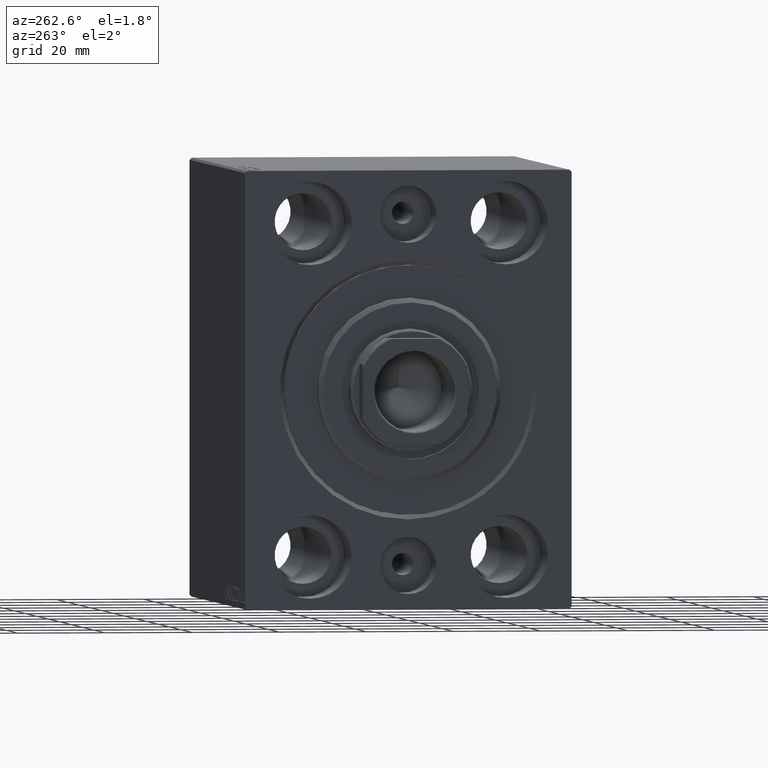
[diagram: clean part render]
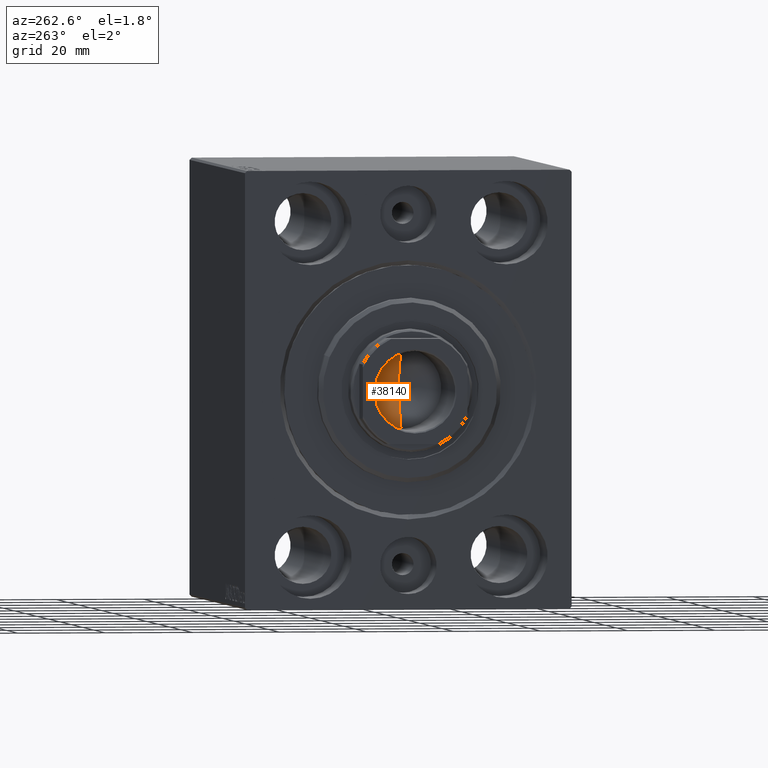
[diagram: same view with one face highlighted and labeled with its STEP entity id]
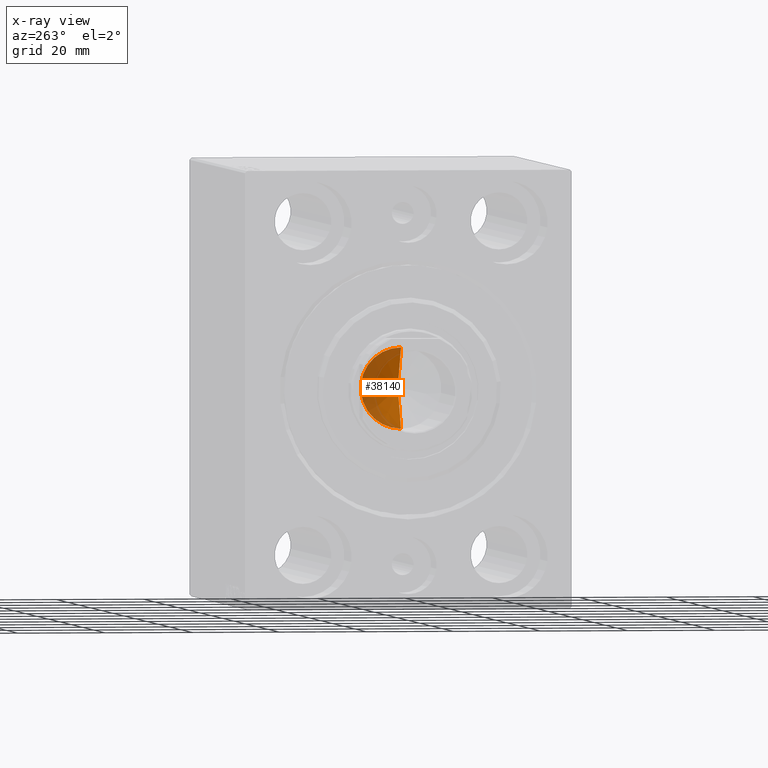
[diagram: x-ray of the same camera — body ghosted, the highlighted face saturated]
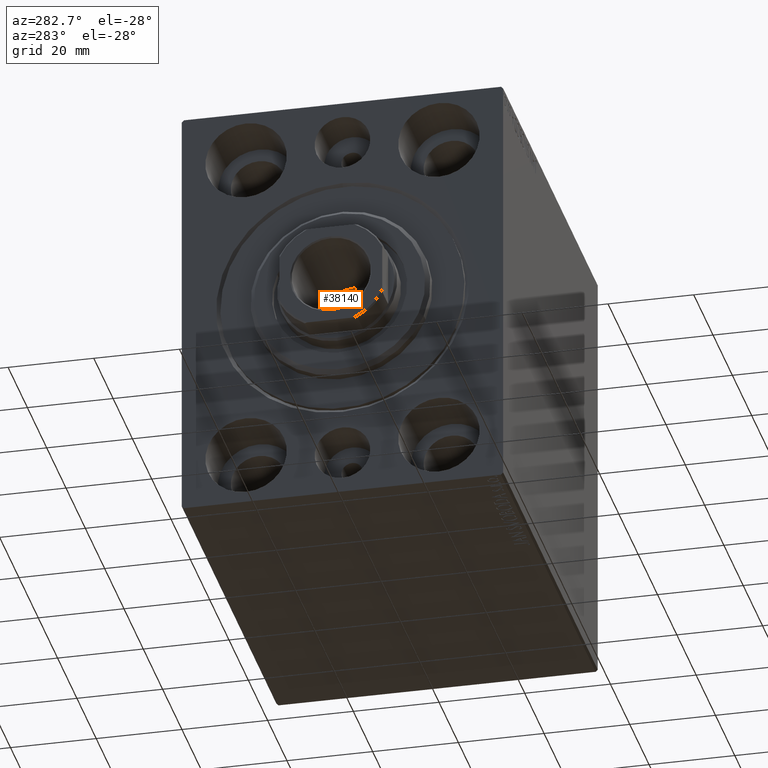
[diagram: same view with one face highlighted and labeled with its STEP entity id]
A machine part, auxiliary view. The second image highlights one B-rep face of the part: STEP entity #38140.
The next image is the same camera in x-ray: the body ghosted, the highlighted face saturated — about 46% of this face is hidden behind the body in this view.
A second angle (auxiliary view) of the same face is appended — the face is thin or edge-on in the first view.
In plain terms, the highlighted conical surface has half-angle 59 deg.
Its self-contained STEP definition (entity closure, byte-faithful):
#2763 = VERTEX_POINT ( 'NONE', #42252 ) ;
#2960 = DIRECTION ( 'NONE',  ( -0.000000000000000000, -0.000000000000000000, 1.000000000000000000 ) ) ;
#3900 = CARTESIAN_POINT ( 'NONE',  ( 9.249999999999994671, 0.000000000000000000, 71.00000000000001421 ) ) ;
#5080 = CARTESIAN_POINT ( 'NONE',  ( -9.249999999999994671, 1.132798289211300909E-15, 71.00000000000001421 ) ) ;
#5991 = ORIENTED_EDGE ( 'NONE', *, *, #30220, .F. ) ;
#7257 = LINE ( 'NONE', #27015, #27198 ) ;
#8311 = VECTOR ( 'NONE', #22465, 1000.000000000000000 ) ;
#9753 = DIRECTION ( 'NONE',  ( -0.000000000000000000, -0.000000000000000000, 1.000000000000000000 ) ) ;
#13919 = DIRECTION ( 'NONE',  ( 0.8571673007021113344, 0.000000000000000000, 0.5150380749100558209 ) ) ;
#14937 = ORIENTED_EDGE ( 'NONE', *, *, #15460, .T. ) ;
#15460 = EDGE_CURVE ( 'NONE', #2763, #37455, #7257, .T. ) ;
#15592 = CONICAL_SURFACE ( 'NONE', #23380, 9.249999999999994671, 1.029744258676652535 ) ;
#16223 = ORIENTED_EDGE ( 'NONE', *, *, #39587, .T. ) ;
#19336 = CARTESIAN_POINT ( 'NONE',  ( -9.249999999999994671, 1.132798289211300909E-15, 71.00000000000001421 ) ) ;
#19778 = CARTESIAN_POINT ( 'NONE',  ( 0.000000000000000000, 0.000000000000000000, 71.00000000000001421 ) ) ;
#20187 = CARTESIAN_POINT ( 'NONE',  ( 0.000000000000000000, 0.000000000000000000, 71.00000000000001421 ) ) ;
#22465 = DIRECTION ( 'NONE',  ( -0.8571673007021113344, 1.049727191138617463E-16, 0.5150380749100558209 ) ) ;
#23380 = AXIS2_PLACEMENT_3D ( 'NONE', #20187, #9753, #29516 ) ;
#24120 = CIRCLE ( 'NONE', #35434, 9.249999999999994671 ) ;
#26492 = VERTEX_POINT ( 'NONE', #5080 ) ;
#27015 = CARTESIAN_POINT ( 'NONE',  ( 9.249999999999994671, 0.000000000000000000, 71.00000000000001421 ) ) ;
#27198 = VECTOR ( 'NONE', #13919, 1000.000000000000000 ) ;
#29123 = LINE ( 'NONE', #19336, #8311 ) ;
#29516 = DIRECTION ( 'NONE',  ( 1.000000000000000000, 0.000000000000000000, 0.000000000000000000 ) ) ;
#30220 = EDGE_CURVE ( 'NONE', #2763, #26492, #29123, .T. ) ;
#35434 = AXIS2_PLACEMENT_3D ( 'NONE', #19778, #2960, #40186 ) ;
#36944 = EDGE_LOOP ( 'NONE', ( #5991, #14937, #16223 ) ) ;
#37455 = VERTEX_POINT ( 'NONE', #3900 ) ;
#38140 = ADVANCED_FACE ( 'NONE', ( #40137 ), #15592, .F. ) ;
#39587 = EDGE_CURVE ( 'NONE', #37455, #26492, #24120, .T. ) ;
#40137 = FACE_OUTER_BOUND ( 'NONE', #36944, .T. ) ;
#40186 = DIRECTION ( 'NONE',  ( 1.000000000000000000, 0.000000000000000000, 0.000000000000000000 ) ) ;
#42252 = CARTESIAN_POINT ( 'NONE',  ( -6.793016015247754405E-15, 0.000000000000000000, 65.44203927399505005 ) ) ;